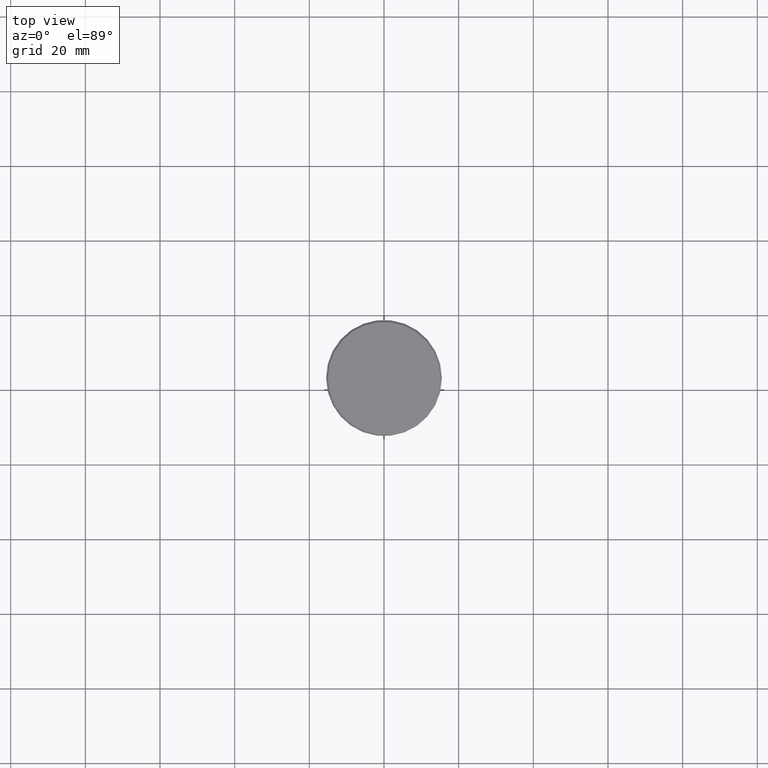
[diagram: clean part render]
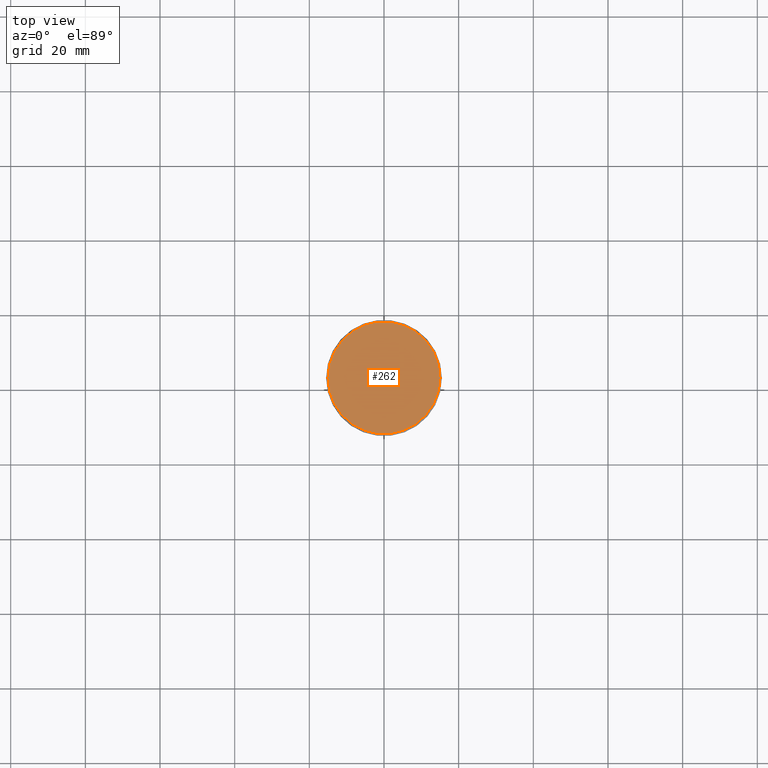
[diagram: same view with one face highlighted and labeled with its STEP entity id]
A machine part, top view. The second image highlights one B-rep face of the part: STEP entity #262.
In plain terms, the highlighted planar face has unit normal (0, -0, 1).
Its self-contained STEP definition (entity closure, byte-faithful):
#5 = DIRECTION ( 'NONE',  ( 1.000000000000000000, 0.000000000000000000, 0.000000000000000000 ) ) ;
#45 = EDGE_CURVE ( 'NONE', #735, #1160, #1014, .T. ) ;
#68 = PLANE ( 'NONE',  #683 ) ;
#146 = AXIS2_PLACEMENT_3D ( 'NONE', #774, #617, #707 ) ;
#147 = ORIENTED_EDGE ( 'NONE', *, *, #45, .T. ) ;
#262 = ADVANCED_FACE ( 'NONE', ( #971 ), #68, .T. ) ;
#355 = DIRECTION ( 'NONE',  ( -0.000000000000000000, -0.000000000000000000, 1.000000000000000000 ) ) ;
#405 = DIRECTION ( 'NONE',  ( 1.000000000000000000, 0.000000000000000000, 0.000000000000000000 ) ) ;
#451 = CIRCLE ( 'NONE', #146, 14.99999999999998579 ) ;
#565 = CARTESIAN_POINT ( 'NONE',  ( 14.99999999999998579, 1.867586368699712587E-15, 0.000000000000000000 ) ) ;
#589 = EDGE_LOOP ( 'NONE', ( #147, #716 ) ) ;
#614 = DIRECTION ( 'NONE',  ( 0.000000000000000000, -0.000000000000000000, 1.000000000000000000 ) ) ;
#617 = DIRECTION ( 'NONE',  ( -0.000000000000000000, -0.000000000000000000, 1.000000000000000000 ) ) ;
#683 = AXIS2_PLACEMENT_3D ( 'NONE', #785, #614, #405 ) ;
#707 = DIRECTION ( 'NONE',  ( 1.000000000000000000, 0.000000000000000000, 0.000000000000000000 ) ) ;
#716 = ORIENTED_EDGE ( 'NONE', *, *, #991, .T. ) ;
#735 = VERTEX_POINT ( 'NONE', #914 ) ;
#774 = CARTESIAN_POINT ( 'NONE',  ( 0.000000000000000000, 0.000000000000000000, 0.000000000000000000 ) ) ;
#785 = CARTESIAN_POINT ( 'NONE',  ( 0.000000000000000000, 0.000000000000000000, 0.000000000000000000 ) ) ;
#914 = CARTESIAN_POINT ( 'NONE',  ( -14.99999999999998579, 0.000000000000000000, 0.000000000000000000 ) ) ;
#971 = FACE_OUTER_BOUND ( 'NONE', #589, .T. ) ;
#991 = EDGE_CURVE ( 'NONE', #1160, #735, #451, .T. ) ;
#1014 = CIRCLE ( 'NONE', #1126, 14.99999999999998579 ) ;
#1126 = AXIS2_PLACEMENT_3D ( 'NONE', #1180, #355, #5 ) ;
#1160 = VERTEX_POINT ( 'NONE', #565 ) ;
#1180 = CARTESIAN_POINT ( 'NONE',  ( 0.000000000000000000, 0.000000000000000000, 0.000000000000000000 ) ) ;